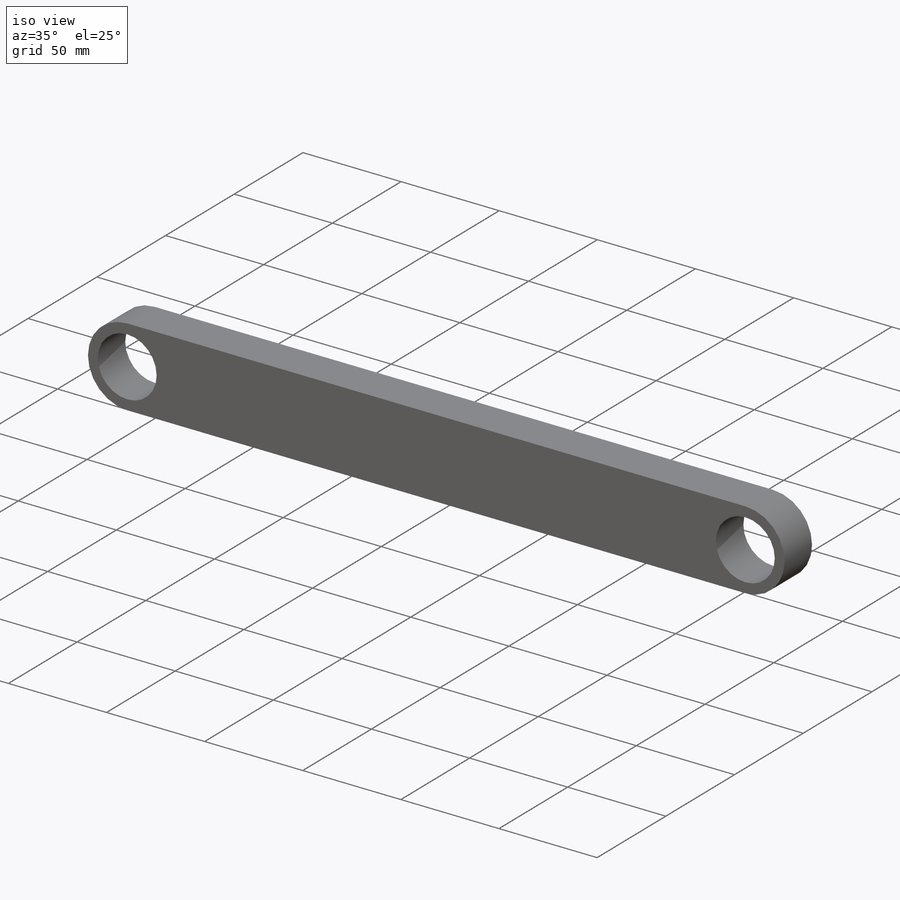
[diagram: iso view]
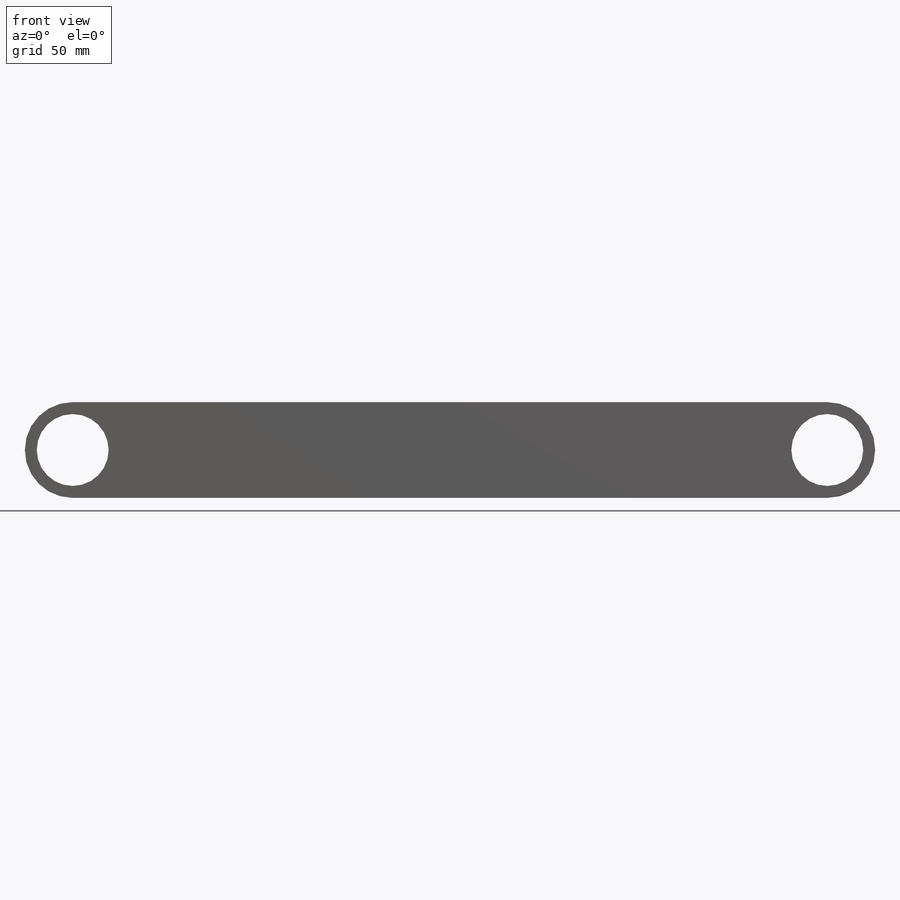
[diagram: front view]
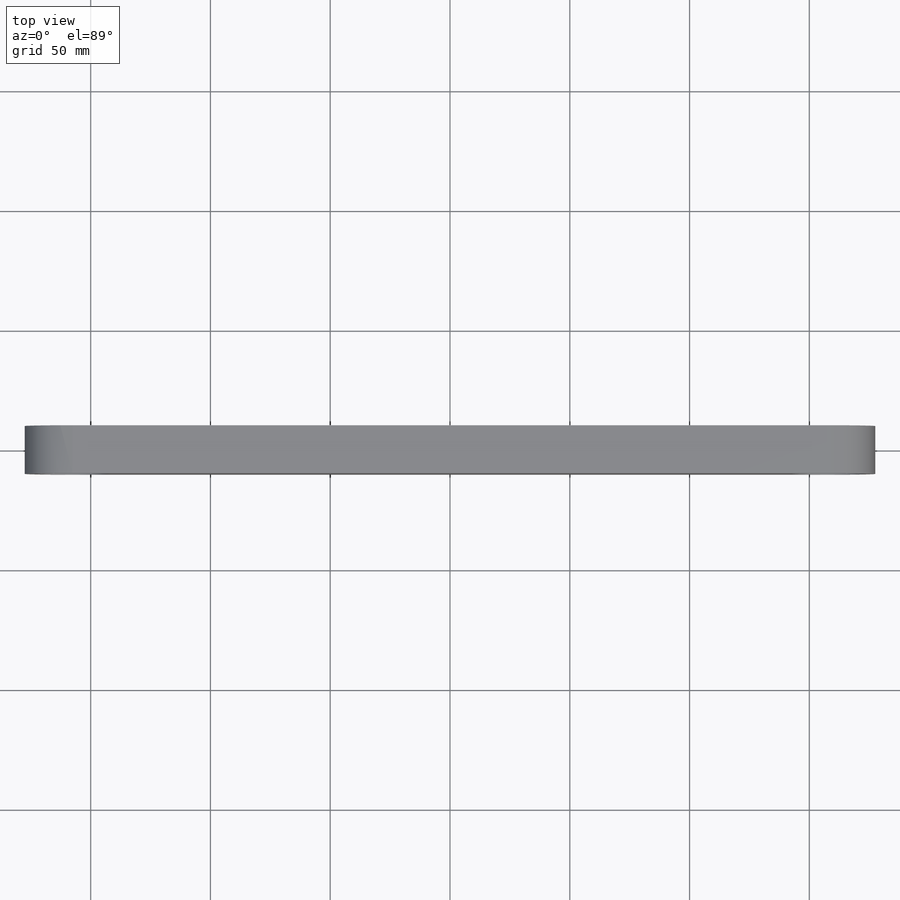
[diagram: top view]
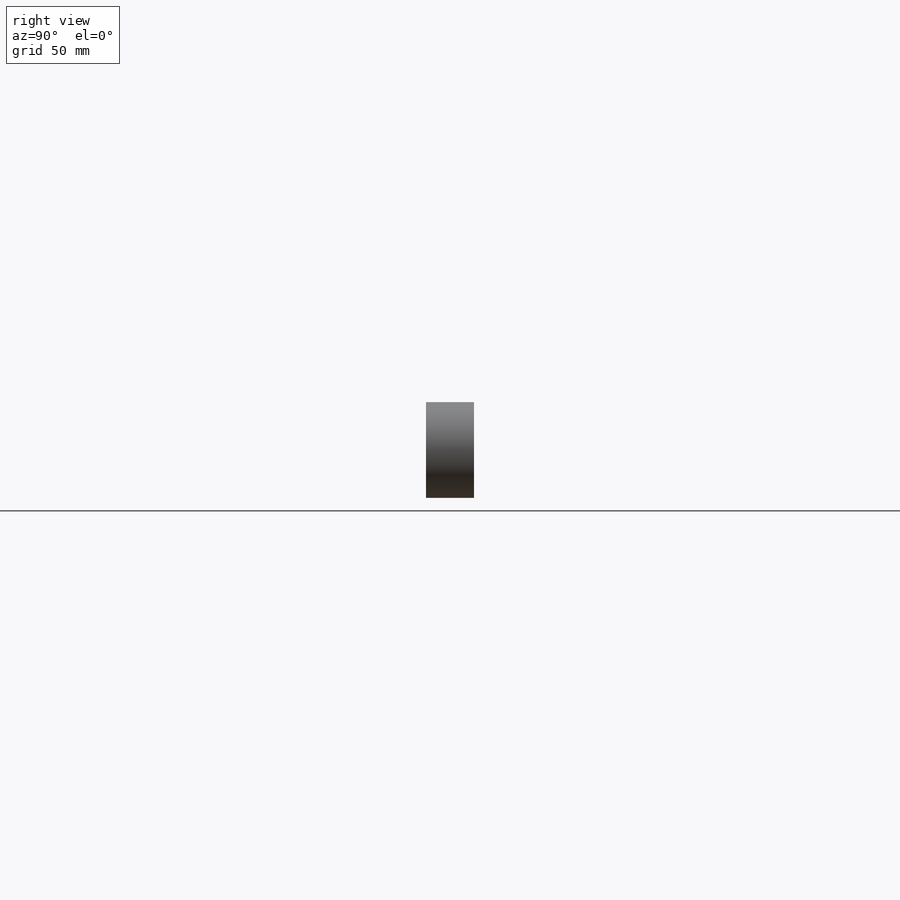
[diagram: right view]
SOLIDWORKS PART (.sldprt)
format: sldprt  version: not decoded by parser v0  size: 1,033,728 bytes
history: native  units: mm
features: sketch x7, extrude x5, plane x3, cut_extrude x2, fillet x2, material x1 (+10 scaffold rows collapsed)
feature tree (30):
  scaffold x10  (default folders/planes/origin — collapsed)
  material  "材質 <未指定>"
  plane  "前基準面"
  plane  "上基準面"
  plane  "右基準面"
  sketch  "草圖1"  dims[D4=30.0mm D3=300.0mm D1=20.0mm D2=20.0mm]
  extrude  "填料-伸長1"  Depth=20mm
  sketch  "草圖2"  dims[D3=30.0mm D4=435.0mm D5=100.0mm D1=20.0mm D2=20.0mm]
  extrude  "填料-伸長2"  Depth=20mm
  sketch  "草圖4"  dims[c1.D5=20.0mm c1.D3=~32.127877mm c2.D5=24.0mm c2.D1=30.0mm c2.D2=80.0mm c2.D3=40.0mm c2.D4=10.0mm c3.D3=15.0mm c3.D4=60.0mm c4.D3=5.0mm c4.D5=50.0mm c4.D4=120.0mm c4.D6=10.0mm]
  extrude  "填料-伸長3"  Depth=60mm
  sketch  "草圖6"  dims[D2=30.0mm D1=25.0mm D3=5.0mm]
  cut_extrude  "除料-伸長2"  [1 undecoded]
  cut_extrude  "除料-伸長3"  [1 undecoded]
  sketch  "草圖6<5>"
  fillet  "圓角1"  Radius=20mm
  fillet  "圓角2"  Radius=10mm
  sketch  "草圖7"  dims[D1=30.0mm D2=315.0mm D3=20.0mm D4=20.0mm]
  extrude  "填料-伸長4"  Depth=20mm
  sketch  "草圖8"  dims[D4=30.0mm D3=285.0mm D1=20.0mm D2=20.0mm]
  extrude  "填料-伸長5"  Depth=20mm
decode coverage: 13 of 16 modeling features carry decoded parameters
note: ~ marks probable driven/reference dimensions
note: 2 parameter values undecoded
note: suppression state not decoded; provenance and decode notes live in map.json
